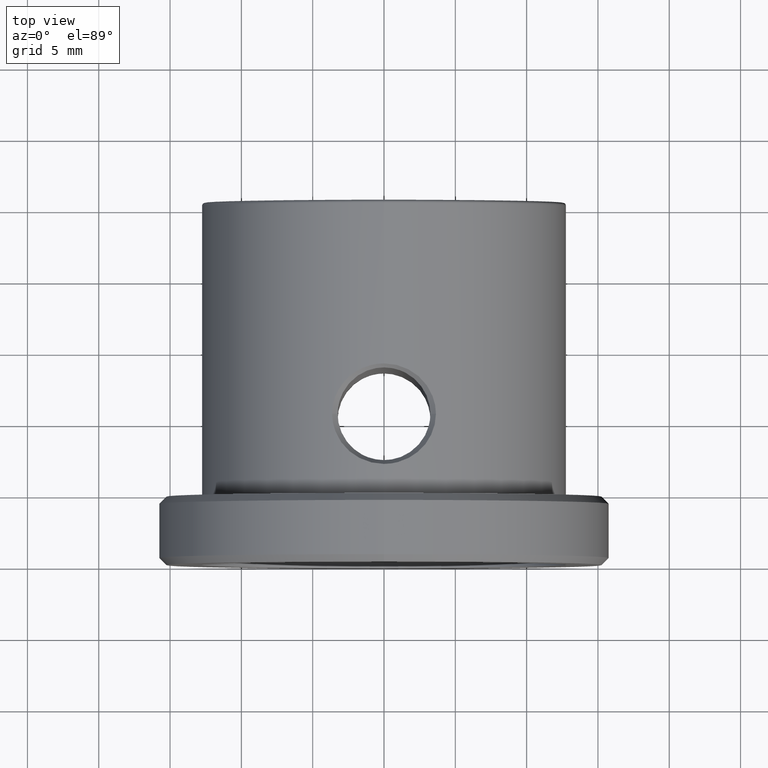
[diagram: clean part render]
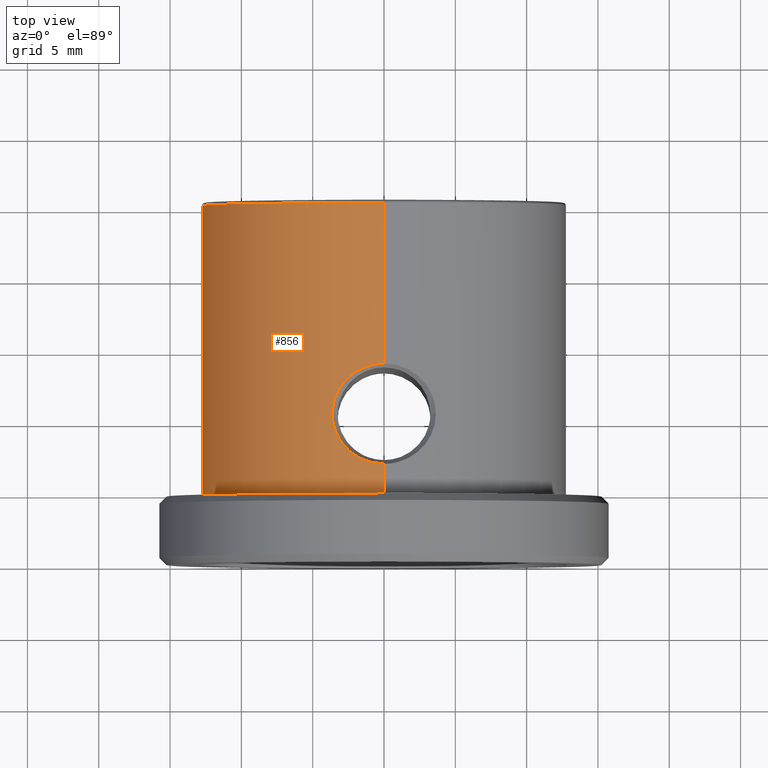
[diagram: same view with one face highlighted and labeled with its STEP entity id]
A machine part, top view. The second image highlights one B-rep face of the part: STEP entity #856.
In plain terms, the highlighted cylindrical surface (partial cylindrical patch) has radius 12.75 mm, axis along (-0, -1, -0).
Its self-contained STEP definition (entity closure, byte-faithful):
#12 = CARTESIAN_POINT ( 'NONE',  ( 0.0000000000000000000, -7.650118203309686400, -12.75000000000000000 ) ) ;
#51 = EDGE_CURVE ( 'NONE', #311, #595, #90, .T. ) ;
#66 = CARTESIAN_POINT ( 'NONE',  ( -3.640413603229192500, 10.40223846368497700, 12.21924256234500900 ) ) ;
#77 = CARTESIAN_POINT ( 'NONE',  ( 1.846089986683641900E-011, 6.875899885643206300, 12.74999998147678000 ) ) ;
#80 = CARTESIAN_POINT ( 'NONE',  ( -3.260868743361205800, 11.96583221171794200, 12.32609285859568100 ) ) ;
#81 = CARTESIAN_POINT ( 'NONE',  ( -3.173427635386665700, 12.18426521330388600, -12.35026232305937900 ) ) ;
#83 = CARTESIAN_POINT ( 'NONE',  ( -2.743926589566243000, 8.072322612733534800, 12.45242967134316800 ) ) ;
#86 = CARTESIAN_POINT ( 'NONE',  ( -0.9444814684256734900, 13.83262020196870500, -12.72311922263528500 ) ) ;
#90 = B_SPLINE_CURVE_WITH_KNOTS ( 'NONE', 3,
 ( #720, #1054, #86, #1395, #1063, #190, #422, #527, #81, #1298, #1183, #523, #195, #958, #1189, #1194, #425, #1069, #860, #952, #625, #308, #1390, #835, #1294, #1279, #634, #737, #641, #1044, #1401, #947, #185, #1170, #299 ),
 .UNSPECIFIED., .F., .F.,
 ( 4, 2, 2, 2, 2, 2, 2, 2, 2, 2, 2, 2, 2, 2, 1, 1, 1, 2, 4 ),
 ( 0.0000000000000000000, 0.06248855592656701900, 0.09373283388985055600, 0.1249771118531340900, 0.1874656677797011100, 0.2030878067613427800, 0.2187099457429844400, 0.2499542237062677400, 0.3124427796328346200, 0.3280649186144763400, 0.3436870575961180600, 0.3749313355594013400, 0.4374198914859677200, 0.4686641694492509300, 0.4842863084308924900, 0.4920973779217133200, 0.4960029126671237100, 0.4979556800398289300, 0.4999084474125341500 ),
 .UNSPECIFIED. ) ;
#106 = EDGE_CURVE ( 'NONE', #332, #114, #572, .T. ) ;
#114 = VERTEX_POINT ( 'NONE', #873 ) ;
#115 = ORIENTED_EDGE ( 'NONE', *, *, #254, .T. ) ;
#119 = FACE_OUTER_BOUND ( 'NONE', #703, .T. ) ;
#169 = ORIENTED_EDGE ( 'NONE', *, *, #851, .T. ) ;
#176 = CARTESIAN_POINT ( 'NONE',  ( -3.640381009248794700, 10.86318651512989100, 12.21925227289532000 ) ) ;
#177 = CARTESIAN_POINT ( 'NONE',  ( 3.131834934006058600E-009, 6.875900978079305200, -12.74999984489722700 ) ) ;
#180 = CARTESIAN_POINT ( 'NONE',  ( -3.547019584194592800, 11.31328752090252000, 12.24823822876621400 ) ) ;
#185 = CARTESIAN_POINT ( 'NONE',  ( -0.02986999063843820100, 6.876005170919505400, -12.74997373824964500 ) ) ;
#189 = CARTESIAN_POINT ( 'NONE',  ( -0.2391645443358367800, 13.92384292837351200, 12.75000000000209300 ) ) ;
#190 = CARTESIAN_POINT ( 'NONE',  ( -2.224923142873216400, 13.19804634321085500, -12.55594702307411300 ) ) ;
#195 = CARTESIAN_POINT ( 'NONE',  ( -3.546832695704968500, 11.19737062393569500, -12.24675758790873900 ) ) ;
#254 = EDGE_CURVE ( 'NONE', #595, #1306, #598, .T. ) ;
#273 = ORIENTED_EDGE ( 'NONE', *, *, #661, .F. ) ;
#286 = CARTESIAN_POINT ( 'NONE',  ( -3.261288621780274300, 8.836467899895508200, 12.32598177711681800 ) ) ;
#299 = CARTESIAN_POINT ( 'NONE',  ( 3.131834934006058600E-009, 6.875900978079305200, -12.74999984489722700 ) ) ;
#304 = B_SPLINE_CURVE_WITH_KNOTS ( 'NONE', 3,
 ( #66, #176, #180, #942, #80, #934, #946, #405, #1034, #511, #1282, #620, #842, #1380, #189, #488 ),
 .UNSPECIFIED., .F., .F.,
 ( 4, 2, 2, 2, 2, 2, 2, 4 ),
 ( 0.5000000000000000000, 0.5624723082063772800, 0.5780903852579716300, 0.5937084623095659800, 0.6249446164127543400, 0.6874169246191314000, 0.7186530787223199800, 0.7498892328255084600 ),
 .UNSPECIFIED. ) ;
#308 = CARTESIAN_POINT ( 'NONE',  ( -2.892967123251273700, 8.248863503124598000, -12.41818375079545500 ) ) ;
#311 = VERTEX_POINT ( 'NONE', #555 ) ;
#321 = CARTESIAN_POINT ( 'NONE',  ( 1.846089986683641900E-011, 6.875899885643206300, 12.74999998147678000 ) ) ;
#327 = DIRECTION ( 'NONE',  ( -0.0000000000000000000, -1.000000000000000000, -0.0000000000000000000 ) ) ;
#332 = VERTEX_POINT ( 'NONE', #791 ) ;
#338 = CYLINDRICAL_SURFACE ( 'NONE', #810, 12.75000000000000000 ) ;
#375 = VERTEX_POINT ( 'NONE', #1215 ) ;
#376 = ORIENTED_EDGE ( 'NONE', *, *, #562, .T. ) ;
#388 = CARTESIAN_POINT ( 'NONE',  ( -1.845959308889632900, 7.330217515515361300, 12.62375767523140300 ) ) ;
#403 = CARTESIAN_POINT ( 'NONE',  ( 1.561424668912875100E-015, 4.799999999999995400, 12.75000000000000000 ) ) ;
#405 = CARTESIAN_POINT ( 'NONE',  ( -2.892666224264071500, 12.55226382463509400, 12.41825514492154300 ) ) ;
#409 = CARTESIAN_POINT ( 'NONE',  ( 1.561424668912875100E-015, -7.650118203309686400, 12.75000000000000000 ) ) ;
#422 = CARTESIAN_POINT ( 'NONE',  ( -2.407320675820129100, 13.05323930198595900, -12.52185725998436700 ) ) ;
#425 = CARTESIAN_POINT ( 'NONE',  ( -3.547181468260585100, 9.489958706066282400, -12.24819330610346700 ) ) ;
#435 = DIRECTION ( 'NONE',  ( -0.0000000000000000000, -1.000000000000000000, -0.0000000000000000000 ) ) ;
#438 = CARTESIAN_POINT ( 'NONE',  ( 0.0000000000000000000, 25.19999999999999900, 0.0000000000000000000 ) ) ;
#441 = DIRECTION ( 'NONE',  ( 0.0000000000000000000, 0.0000000000000000000, -1.000000000000000000 ) ) ;
#488 = CARTESIAN_POINT ( 'NONE',  ( 5.140850378521168700E-011, 13.92409768546013600, 12.74999968928411100 ) ) ;
#495 = CARTESIAN_POINT ( 'NONE',  ( -0.4747851530954265200, 6.898827454054466700, 12.74329165179981000 ) ) ;
#499 = AXIS2_PLACEMENT_3D ( 'NONE', #438, #327, #441 ) ;
#500 = CARTESIAN_POINT ( 'NONE',  ( -3.547253675915727400, 9.489657493144237700, 12.24816588324911800 ) ) ;
#511 = CARTESIAN_POINT ( 'NONE',  ( -2.236067988698319000, 13.21843684447291900, 12.55713279040381500 ) ) ;
#523 = CARTESIAN_POINT ( 'NONE',  ( -3.517585024604999800, 11.30911204850890100, -12.25522052405828400 ) ) ;
#527 = CARTESIAN_POINT ( 'NONE',  ( -2.912835250054479200, 12.56442910477875900, -12.41758024369713600 ) ) ;
#529 = VERTEX_POINT ( 'NONE', #403 ) ;
#536 = VECTOR ( 'NONE', #1176, 1000.000000000000000 ) ;
#555 = CARTESIAN_POINT ( 'NONE',  ( -7.211679852366091700E-016, 13.92410025591510700, -12.75000000000000200 ) ) ;
#559 = CARTESIAN_POINT ( 'NONE',  ( 0.0000000000000000000, 4.799999999999995400, 0.0000000000000000000 ) ) ;
#561 = AXIS2_PLACEMENT_3D ( 'NONE', #559, #435, #877 ) ;
#562 = EDGE_CURVE ( 'NONE', #924, #829, #1075, .T. ) ;
#572 = CIRCLE ( 'NONE', #499, 12.75000000000000000 ) ;
#595 = VERTEX_POINT ( 'NONE', #177 ) ;
#598 = LINE ( 'NONE', #12, #769 ) ;
#601 = CARTESIAN_POINT ( 'NONE',  ( 0.0000000000000000000, -7.650118203309686400, 0.0000000000000000000 ) ) ;
#603 = CARTESIAN_POINT ( 'NONE',  ( -3.149579080815950900, 8.632741231279235100, 12.35499825406932000 ) ) ;
#618 = CARTESIAN_POINT ( 'NONE',  ( -0.9405553451835646500, 6.989999122672497100, 12.71739984065442800 ) ) ;
#620 = CARTESIAN_POINT ( 'NONE',  ( -1.171388144930000800, 13.74117971845177500, 12.69808442358905300 ) ) ;
#625 = CARTESIAN_POINT ( 'NONE',  ( -3.088725100434454700, 8.534135079194436800, -12.37039970514815000 ) ) ;
#634 = CARTESIAN_POINT ( 'NONE',  ( -0.9408533798562507300, 6.989924139997477900, -12.71737698017920700 ) ) ;
#641 = CARTESIAN_POINT ( 'NONE',  ( -0.4157334707661021200, 6.895985164061909400, -12.74417918655644600 ) ) ;
#661 = EDGE_CURVE ( 'NONE', #529, #1306, #1132, .T. ) ;
#701 = CARTESIAN_POINT ( 'NONE',  ( -0.2387780886093973900, 6.875989646146618600, 12.75000000000010300 ) ) ;
#703 = EDGE_LOOP ( 'NONE', ( #905, #1125, #1009, #836, #115, #273, #1046, #376, #169 ) ) ;
#712 = CARTESIAN_POINT ( 'NONE',  ( -3.640446209833029500, 9.941111890037886300, 12.21923284803386900 ) ) ;
#720 = CARTESIAN_POINT ( 'NONE',  ( -7.211679852366091700E-016, 13.92410025591510700, -12.75000000000000200 ) ) ;
#737 = CARTESIAN_POINT ( 'NONE',  ( -0.5915928070344296200, 6.921621784218489300, -12.73680154258752100 ) ) ;
#754 = DIRECTION ( 'NONE',  ( -0.0000000000000000000, -1.000000000000000000, -0.0000000000000000000 ) ) ;
#769 = VECTOR ( 'NONE', #754, 1000.000000000000000 ) ;
#784 = LINE ( 'NONE', #409, #1029 ) ;
#791 = CARTESIAN_POINT ( 'NONE',  ( 1.561424668912875100E-015, 25.19999999999999900, 12.75000000000000000 ) ) ;
#810 = AXIS2_PLACEMENT_3D ( 'NONE', #601, #1043, #951 ) ;
#821 = LINE ( 'NONE', #929, #536 ) ;
#829 = VERTEX_POINT ( 'NONE', #1105 ) ;
#831 = CARTESIAN_POINT ( 'NONE',  ( -3.089049514866137900, 8.534261989457975900, 12.37031867906864200 ) ) ;
#835 = CARTESIAN_POINT ( 'NONE',  ( -2.237330915171227300, 7.581928547441519200, -12.55689346078235100 ) ) ;
#836 = ORIENTED_EDGE ( 'NONE', *, *, #51, .T. ) ;
#842 = CARTESIAN_POINT ( 'NONE',  ( -0.9408025201902451300, 13.80985752619470500, 12.71737912460063500 ) ) ;
#851 = EDGE_CURVE ( 'NONE', #829, #375, #304, .T. ) ;
#856 = ADVANCED_FACE ( 'NONE', ( #119 ), #338, .T. ) ;
#858 = CARTESIAN_POINT ( 'NONE',  ( 0.0000000000000000000, 4.799999999999995400, -12.75000000000000000 ) ) ;
#860 = CARTESIAN_POINT ( 'NONE',  ( -3.260904882583183500, 8.836154735116037900, -12.32608318248941800 ) ) ;
#873 = CARTESIAN_POINT ( 'NONE',  ( 0.0000000000000000000, 25.19999999999999900, -12.75000000000000000 ) ) ;
#877 = DIRECTION ( 'NONE',  ( 0.0000000000000000000, 0.0000000000000000000, -1.000000000000000000 ) ) ;
#905 = ORIENTED_EDGE ( 'NONE', *, *, #1175, .F. ) ;
#924 = VERTEX_POINT ( 'NONE', #321 ) ;
#929 = CARTESIAN_POINT ( 'NONE',  ( 1.561424668912875100E-015, -7.650118203309686400, 12.75000000000000000 ) ) ;
#934 = CARTESIAN_POINT ( 'NONE',  ( -3.149160299867564300, 12.16909932546303200, 12.35510499857818100 ) ) ;
#941 = DIRECTION ( 'NONE',  ( -0.0000000000000000000, -1.000000000000000000, -0.0000000000000000000 ) ) ;
#942 = CARTESIAN_POINT ( 'NONE',  ( -3.311375672646300800, 11.86235497102795500, 12.31258209645973000 ) ) ;
#944 = CARTESIAN_POINT ( 'NONE',  ( -3.640413603229192500, 10.40223846368497700, 12.21924256234500900 ) ) ;
#946 = CARTESIAN_POINT ( 'NONE',  ( -3.088599935706496600, 12.26739434971870900, 12.37043128267951500 ) ) ;
#947 = CARTESIAN_POINT ( 'NONE',  ( -0.05970551646284476300, 6.876375435318015800, -12.74986893241261000 ) ) ;
#951 = DIRECTION ( 'NONE',  ( 0.0000000000000000000, 0.0000000000000000000, -1.000000000000000000 ) ) ;
#952 = CARTESIAN_POINT ( 'NONE',  ( -3.149244312235366800, 8.632575220521404800, -12.35508346943704800 ) ) ;
#958 = CARTESIAN_POINT ( 'NONE',  ( -3.616999689074365900, 10.85993475740200700, -12.22629083583914400 ) ) ;
#979 = EDGE_CURVE ( 'NONE', #114, #311, #1088, .T. ) ;
#1009 = ORIENTED_EDGE ( 'NONE', *, *, #979, .T. ) ;
#1029 = VECTOR ( 'NONE', #941, 1000.000000000000000 ) ;
#1034 = CARTESIAN_POINT ( 'NONE',  ( -2.743037681385838100, 12.72882267744518400, 12.45263085737212800 ) ) ;
#1043 = DIRECTION ( 'NONE',  ( -0.0000000000000000000, -1.000000000000000000, -0.0000000000000000000 ) ) ;
#1044 = CARTESIAN_POINT ( 'NONE',  ( -0.2085241167363331400, 6.880976249911825900, -12.74853706296052300 ) ) ;
#1046 = ORIENTED_EDGE ( 'NONE', *, *, #1229, .F. ) ;
#1054 = CARTESIAN_POINT ( 'NONE',  ( -0.4779301703281381700, 13.92386447055702400, -12.75000000000000000 ) ) ;
#1063 = CARTESIAN_POINT ( 'NONE',  ( -1.832053829528395900, 13.45140104330564600, -12.61925779923870600 ) ) ;
#1069 = CARTESIAN_POINT ( 'NONE',  ( -3.311389756260590700, 8.939760630118451300, -12.31257843057904800 ) ) ;
#1075 = B_SPLINE_CURVE_WITH_KNOTS ( 'NONE', 3,
 ( #77, #701, #495, #618, #1268, #388, #1154, #83, #1150, #831, #603, #286, #1256, #500, #712, #944 ),
 .UNSPECIFIED., .F., .F.,
 ( 4, 2, 2, 2, 2, 2, 2, 4 ),
 ( 0.2500139866891315500, 0.2812622383529900200, 0.3125104900168485000, 0.3750069933445654400, 0.4062552450084239200, 0.4218793708403532100, 0.4375034966722825000, 0.5000000000000000000 ),
 .UNSPECIFIED. ) ;
#1088 = LINE ( 'NONE', #1118, #1248 ) ;
#1105 = CARTESIAN_POINT ( 'NONE',  ( -3.640413603229192500, 10.40223846368497700, 12.21924256234500900 ) ) ;
#1109 = DIRECTION ( 'NONE',  ( -0.0000000000000000000, -1.000000000000000000, -0.0000000000000000000 ) ) ;
#1118 = CARTESIAN_POINT ( 'NONE',  ( 0.0000000000000000000, -7.650118203309686400, -12.75000000000000000 ) ) ;
#1125 = ORIENTED_EDGE ( 'NONE', *, *, #106, .T. ) ;
#1132 = CIRCLE ( 'NONE', #561, 12.75000000000000000 ) ;
#1150 = CARTESIAN_POINT ( 'NONE',  ( -2.893303308743646200, 8.248976541454810600, 12.41810534951489200 ) ) ;
#1154 = CARTESIAN_POINT ( 'NONE',  ( -2.238102423686306100, 7.582969936412210300, 12.55674913884142700 ) ) ;
#1170 = CARTESIAN_POINT ( 'NONE',  ( -0.01380198693246773500, 6.875908141684853100, -12.75000000000337000 ) ) ;
#1175 = EDGE_CURVE ( 'NONE', #332, #375, #821, .T. ) ;
#1176 = DIRECTION ( 'NONE',  ( -0.0000000000000000000, -1.000000000000000000, -0.0000000000000000000 ) ) ;
#1183 = CARTESIAN_POINT ( 'NONE',  ( -3.447301513413739000, 11.53112050244591000, -12.27517603842160900 ) ) ;
#1189 = CARTESIAN_POINT ( 'NONE',  ( -3.640357837837680400, 10.63202872262742600, -12.21925917623309800 ) ) ;
#1194 = CARTESIAN_POINT ( 'NONE',  ( -3.640527032901613900, 9.939464247047347100, -12.21920876884281200 ) ) ;
#1215 = CARTESIAN_POINT ( 'NONE',  ( 5.140850378521168700E-011, 13.92409768546013600, 12.74999968928411100 ) ) ;
#1229 = EDGE_CURVE ( 'NONE', #924, #529, #784, .T. ) ;
#1248 = VECTOR ( 'NONE', #1109, 1000.000000000000000 ) ;
#1256 = CARTESIAN_POINT ( 'NONE',  ( -3.311956687028092100, 8.940520188374188500, 12.31242553936084900 ) ) ;
#1268 = CARTESIAN_POINT ( 'NONE',  ( -1.172007036005151300, 7.059012522756268600, 12.69803057213260900 ) ) ;
#1279 = CARTESIAN_POINT ( 'NONE',  ( -1.171487804881173200, 7.058597606212202000, -12.69808299857899700 ) ) ;
#1282 = CARTESIAN_POINT ( 'NONE',  ( -1.844799386560827900, 13.47016642947500600, 12.62391413477037400 ) ) ;
#1294 = CARTESIAN_POINT ( 'NONE',  ( -1.846197308008652200, 7.330131770061366400, -12.62374102883319800 ) ) ;
#1298 = CARTESIAN_POINT ( 'NONE',  ( -3.405757629604087000, 11.64257063378347100, -12.28680736069106100 ) ) ;
#1306 = VERTEX_POINT ( 'NONE', #858 ) ;
#1380 = CARTESIAN_POINT ( 'NONE',  ( -0.4752980835347209700, 13.90094400299989300, 12.74327010278808100 ) ) ;
#1390 = CARTESIAN_POINT ( 'NONE',  ( -2.743525448817203800, 8.072080916292780000, -12.45251977970913500 ) ) ;
#1395 = CARTESIAN_POINT ( 'NONE',  ( -1.623335507535553800, 13.55924107424086200, -12.64828481768859400 ) ) ;
#1401 = CARTESIAN_POINT ( 'NONE',  ( -0.1044242455353359400, 6.877196911844936100, -12.74963330022763600 ) ) ;